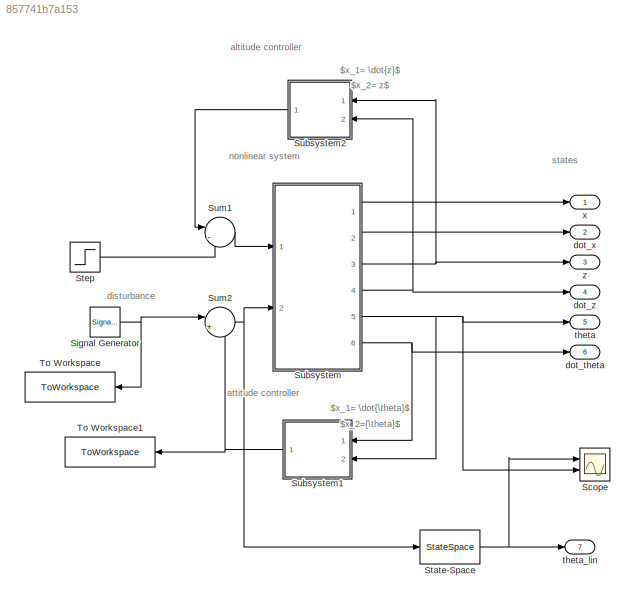
MODEL slx_857741b7a153
KIND model
CONFIG AbsTol = auto
CONFIG EnableMultiTasking = off
CONFIG FixedStep = auto
CONFIG MaxStep = auto
CONFIG MinStep = auto
CONFIG RelTol = 1e-3
CONFIG SampleTimeConstraint = Unconstrained
CONFIG Solver = VariableStepAuto
CONFIG SolverName = VariableStepAuto
CONFIG StartTime = 0.0
CONFIG StopTime = 1
BLOCK [Scope] Scope
  Floating = off
  NumInputPorts = 2
  Ports = [2]
  ScopeSpecificationString = Simulink.scopes.TimeScopeBlockCfg('CurrentConfiguration', extmgr.ConfigurationSet(extmgr.Configuration('Core','General UI',true),extmgr.Configuration('Core','Source UI',true),extmgr.Configuration('Sources','WiredSimulink',true),extmgr.Configuration('Visuals','Time Domain',true,'SerializedDisplays',{struct('MinYLimReal','-0.000000002','MaxYLimReal','0.000000017','YLabelReal','','MinYLimMag','0.0000...<+1400ch>
BLOCK [SignalGenerator] Signal Generator
  Amplitude = 1e-6
  Ports = [0, 1]
  Units = rad/sec
  WaveForm = square
BLOCK [StateSpace] State-Space
  A = sys.A
  B = sys.B
  C = sys.C
  D = sys.D
  InitialCondition = 0
  Ports = [1, 1]
BLOCK [Step] Step
  After = 7e6
  Before = 0.05*7e6
  SampleTime = 0
  Time = t_on
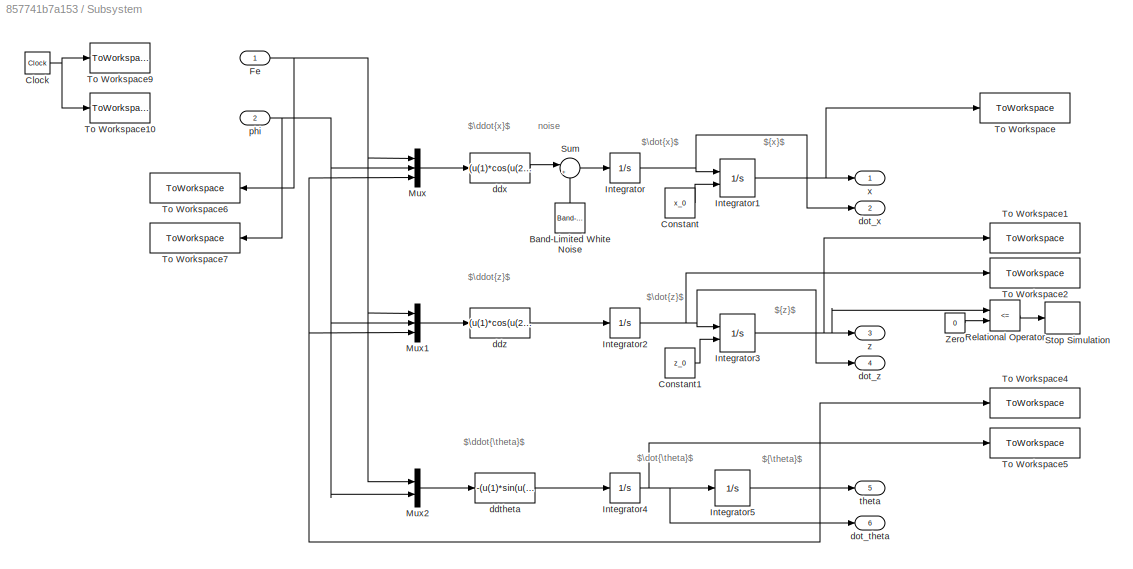
BLOCK [SubSystem] Subsystem
  Ports = [2, 6]
  RequestExecContextInheritance = off
BLOCK [Reference] Subsystem/Band-Limited White Noise  REF=simulink/Sources/Band-Limited
White Noise
  Ports = [0, 1]
  SourceBlock = simulink/Sources/Band-Limited\nWhite Noise
  SourceProductBaseCode = SL
  SourceProductName = Simulink
  SourceType = Band-Limited White Noise.
BLOCK [Clock] Subsystem/Clock
BLOCK [Constant] Subsystem/Constant
  SampleTime = Ts
  Value = x_0
BLOCK [Constant] Subsystem/Constant1
  SampleTime = Ts
  Value = z_0
BLOCK [Inport] Subsystem/Fe
  IconDisplay = Port number
BLOCK [Integrator] Subsystem/Integrator
  ContinuousStateAttributes = 'x_dot'
  Ports = [1, 1]
BLOCK [Integrator] Subsystem/Integrator1
  ContinuousStateAttributes = 'x'
  InitialConditionSource = external
  Ports = [2, 1]
BLOCK [Integrator] Subsystem/Integrator2
  ContinuousStateAttributes = 'z_dot'
  Ports = [1, 1]
BLOCK [Integrator] Subsystem/Integrator3
  ContinuousStateAttributes = 'z'
  InitialCondition = 50
  InitialConditionSource = external
  LimitOutput = on
  LowerSaturationLimit = 0
  Ports = [2, 1]
BLOCK [Integrator] Subsystem/Integrator4
  ContinuousStateAttributes = 'theta_dot'
  Ports = [1, 1]
BLOCK [Integrator] Subsystem/Integrator5
  Ports = [1, 1]
BLOCK [Mux] Subsystem/Mux
  DisplayOption = bar
  Inputs = 3
  Ports = [3, 1]
BLOCK [Mux] Subsystem/Mux1
  DisplayOption = bar
  Inputs = 3
  Ports = [3, 1]
BLOCK [Mux] Subsystem/Mux2
  DisplayOption = bar
  Inputs = 2
  Ports = [2, 1]
BLOCK [RelationalOperator] Subsystem/Relational Operator
  Commented = on
  InputSameDT = off
  Operator = <=
  OutDataTypeStr = boolean
  Ports = [2, 1]
BLOCK [Stop] Subsystem/Stop Simulation
  Commented = on
BLOCK [Sum] Subsystem/Sum
  IconShape = round
  InputSameDT = off
  Inputs = |++
  OutDataTypeStr = Inherit: Inherit via internal rule
  Ports = [2, 1]
  SaturateOnIntegerOverflow = off
BLOCK [ToWorkspace] Subsystem/To Workspace
  FixptAsFi = on
  MaxDataPoints = inf
  Ports = [1]
  SampleTime = Ts
  VariableName = x
BLOCK [ToWorkspace] Subsystem/To Workspace1
  FixptAsFi = on
  MaxDataPoints = inf
  Ports = [1]
  SampleTime = Ts
  VariableName = z
BLOCK [ToWorkspace] Subsystem/To Workspace10
  FixptAsFi = on
  MaxDataPoints = inf
  Ports = [1]
  SampleTime = Ts
  VariableName = ts
BLOCK [ToWorkspace] Subsystem/To Workspace2
  FixptAsFi = on
  MaxDataPoints = inf
  Ports = [1]
  SampleTime = Ts
  VariableName = dot_z
BLOCK [ToWorkspace] Subsystem/To Workspace4
  FixptAsFi = on
  MaxDataPoints = inf
  Ports = [1]
  SampleTime = Ts
  VariableName = theta
BLOCK [ToWorkspace] Subsystem/To Workspace5
  FixptAsFi = on
  MaxDataPoints = inf
  Ports = [1]
  SampleTime = Ts
  VariableName = dot_theta
BLOCK [ToWorkspace] Subsystem/To Workspace6
  FixptAsFi = on
  MaxDataPoints = inf
  Ports = [1]
  SampleTime = Ts
  VariableName = thrust
BLOCK [ToWorkspace] Subsystem/To Workspace7
  FixptAsFi = on
  MaxDataPoints = inf
  Ports = [1]
  SampleTime = Ts
  VariableName = gimbal
BLOCK [ToWorkspace] Subsystem/To Workspace9
  FixptAsFi = on
  MaxDataPoints = inf
  Ports = [1]
  SampleTime = -1
  VariableName = t
BLOCK [Constant] Subsystem/Zero
  Commented = on
  OutDataTypeStr = Inherit: Inherit via back propagation
  Value = 0
BLOCK [Fcn] Subsystem/ddtheta
  Expr = -(u(1)*sin(u(2))*(60+1*cos(u(2))))/J_T
BLOCK [Fcn] Subsystem/ddx
  Expr = (u(1)*cos(u(2))*sin(u(3))+u(1)*cos(u(3))*sin(u(2)))/m
BLOCK [Fcn] Subsystem/ddz
  Expr = (u(1)*cos(u(2))*cos(u(3))-u(1)*sin(u(2))*sin(u(3))-m*g)/m
BLOCK [Outport] Subsystem/dot_theta 
  IconDisplay = Port number
  Port = 6
BLOCK [Outport] Subsystem/dot_x
  IconDisplay = Port number
  Port = 2
BLOCK [Outport] Subsystem/dot_z 
  IconDisplay = Port number
  Port = 4
BLOCK [Inport] Subsystem/phi
  IconDisplay = Port number
  Port = 2
BLOCK [Outport] Subsystem/theta
  IconDisplay = Port number
  Port = 5
BLOCK [Outport] Subsystem/x
  IconDisplay = Port number
BLOCK [Outport] Subsystem/z
  IconDisplay = Port number
  Port = 3
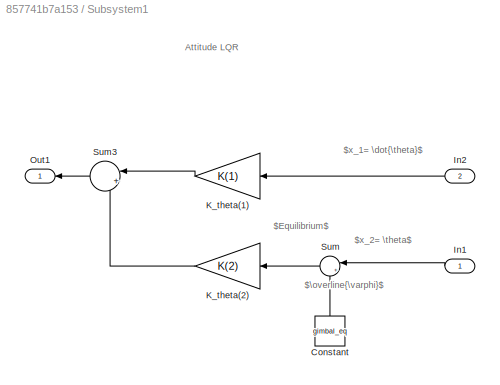
BLOCK [SubSystem] Subsystem1
  Ports = [2, 1]
  RequestExecContextInheritance = off
BLOCK [Constant] Subsystem1/Constant
  Value = gimbal_eq
BLOCK [Inport] Subsystem1/In1
  IconDisplay = Port number
BLOCK [Inport] Subsystem1/In2
  IconDisplay = Port number
  Port = 2
BLOCK [Gain] Subsystem1/K_theta(1)
  Gain = K(1)
  Multiplication = Matrix(K*u)
  OutDataTypeStr = Inherit: Inherit via internal rule
  ParamDataTypeStr = Inherit: Inherit via internal rule
  SaturateOnIntegerOverflow = off
BLOCK [Gain] Subsystem1/K_theta(2)
  Gain = K(2)
  Multiplication = Matrix(K*u)
  OutDataTypeStr = Inherit: Inherit via internal rule
  ParamDataTypeStr = Inherit: Inherit via internal rule
  SaturateOnIntegerOverflow = off
BLOCK [Outport] Subsystem1/Out1
  IconDisplay = Port number
BLOCK [Sum] Subsystem1/Sum
  IconShape = round
  InputSameDT = off
  Inputs = |+-
  OutDataTypeStr = Inherit: Inherit via internal rule
  Ports = [2, 1]
  SaturateOnIntegerOverflow = off
BLOCK [Sum] Subsystem1/Sum3
  IconShape = round
  InputSameDT = off
  Inputs = |++
  OutDataTypeStr = Inherit: Inherit via internal rule
  Ports = [2, 1]
  SaturateOnIntegerOverflow = off
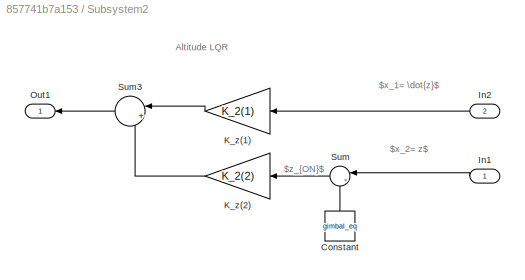
BLOCK [SubSystem] Subsystem2
  Ports = [2, 1]
  RequestExecContextInheritance = off
BLOCK [Constant] Subsystem2/Constant
  Value = gimbal_eq
BLOCK [Inport] Subsystem2/In1
  IconDisplay = Port number
BLOCK [Inport] Subsystem2/In2
  IconDisplay = Port number
  Port = 2
BLOCK [Gain] Subsystem2/K_z(1)
  Gain = K_2(1)
  Multiplication = Matrix(K*u)
  OutDataTypeStr = Inherit: Inherit via internal rule
  ParamDataTypeStr = Inherit: Inherit via internal rule
  SaturateOnIntegerOverflow = off
BLOCK [Gain] Subsystem2/K_z(2)
  Gain = K_2(2)
  Multiplication = Matrix(K*u)
  OutDataTypeStr = Inherit: Inherit via internal rule
  ParamDataTypeStr = Inherit: Inherit via internal rule
  SaturateOnIntegerOverflow = off
BLOCK [Outport] Subsystem2/Out1
  IconDisplay = Port number
BLOCK [Sum] Subsystem2/Sum
  IconShape = round
  InputSameDT = off
  Inputs = |+-
  OutDataTypeStr = Inherit: Inherit via internal rule
  Ports = [2, 1]
  SaturateOnIntegerOverflow = off
BLOCK [Sum] Subsystem2/Sum3
  IconShape = round
  InputSameDT = off
  Inputs = |++
  OutDataTypeStr = Inherit: Inherit via internal rule
  Ports = [2, 1]
  SaturateOnIntegerOverflow = off
BLOCK [Sum] Sum1
  IconShape = round
  InputSameDT = off
  Inputs = |-+
  OutDataTypeStr = Inherit: Inherit via internal rule
  Ports = [2, 1]
  SaturateOnIntegerOverflow = off
BLOCK [Sum] Sum2
  IconShape = round
  InputSameDT = off
  Inputs = |+-
  OutDataTypeStr = Inherit: Inherit via internal rule
  Ports = [2, 1]
  SaturateOnIntegerOverflow = off
BLOCK [ToWorkspace] To Workspace
  FixptAsFi = on
  MaxDataPoints = inf
  Ports = [1]
  SampleTime = Ts
  VariableName = disturb
BLOCK [ToWorkspace] To Workspace1
  FixptAsFi = on
  MaxDataPoints = inf
  Ports = [1]
  SampleTime = Ts
  VariableName = Phi_control
BLOCK [Outport] dot_theta 
  IconDisplay = Port number
  Port = 6
BLOCK [Outport] dot_x 
  IconDisplay = Port number
  Port = 2
BLOCK [Outport] dot_z
  IconDisplay = Port number
  Port = 4
BLOCK [Outport] theta
  IconDisplay = Port number
  Port = 5
BLOCK [Outport] theta_lin
  IconDisplay = Port number
  Port = 7
BLOCK [Outport] x
  IconDisplay = Port number
BLOCK [Outport] z
  IconDisplay = Port number
  Port = 3
ANNOTATION (root): disturbance
ANNOTATION (root): altitude controller
ANNOTATION (root): attitude controller
ANNOTATION (root): nonlinear system
ANNOTATION (root): states
ANNOTATION (root): $x_1= \dot{\theta}$
ANNOTATION (root): $x_1= \dot{z}$
ANNOTATION (root): $x_2= z$
ANNOTATION (root): $x_2={\theta}$
ANNOTATION Subsystem: noise
ANNOTATION Subsystem: $\ddot{\theta}$
ANNOTATION Subsystem: $\ddot{x}$
ANNOTATION Subsystem: $\ddot{z}$
ANNOTATION Subsystem: $\dot{\theta}$
ANNOTATION Subsystem: $\dot{x}$
ANNOTATION Subsystem: $\dot{z}$
ANNOTATION Subsystem: ${\theta}$
ANNOTATION Subsystem: ${x}$
ANNOTATION Subsystem: ${z}$
ANNOTATION Subsystem1: Attitude LQR
ANNOTATION Subsystem1: $\overline{\varphi}$
ANNOTATION Subsystem1: $x_1= \dot{\theta}$
ANNOTATION Subsystem1: $Equilibrium$
ANNOTATION Subsystem1: $x_2= \theta$
ANNOTATION Subsystem2: Altitude LQR
ANNOTATION Subsystem2: $z_{ON}$
ANNOTATION Subsystem2: $x_1= \dot{z}$
ANNOTATION Subsystem2: $x_2= z$
NET Signal Generator:1 -> Sum2:1, To Workspace:1
NET State-Space:1 -> Scope:1, theta_lin:1
LINE Step:1 -> Sum1:2
LINE Subsystem/Band-Limited White Noise:1 -> Subsystem/Sum:2
NET Subsystem/Clock:1 -> Subsystem/To Workspace10:1, Subsystem/To Workspace9:1
LINE Subsystem/Constant1:1 -> Subsystem/Integrator3:2
LINE Subsystem/Constant:1 -> Subsystem/Integrator1:2
NET Subsystem/Fe:1 -> Subsystem/Mux1:1, Subsystem/Mux2:1, Subsystem/Mux:1, Subsystem/To Workspace6:1
NET Subsystem/Integrator1:1 -> Subsystem/To Workspace:1, Subsystem/x:1
NET Subsystem/Integrator2:1 -> Subsystem/Integrator3:1, Subsystem/To Workspace2:1, Subsystem/dot_z :1
NET Subsystem/Integrator3:1 -> Subsystem/Relational Operator:1, Subsystem/To Workspace1:1, Subsystem/z:1
NET Subsystem/Integrator4:1 -> Subsystem/Integrator5:1, Subsystem/To Workspace5:1, Subsystem/dot_theta :1
NET Subsystem/Integrator5:1 -> Subsystem/Mux1:3, Subsystem/Mux:3, Subsystem/To Workspace4:1, Subsystem/theta:1
NET Subsystem/Integrator:1 -> Subsystem/Integrator1:1, Subsystem/dot_x:1
LINE Subsystem/Mux1:1 -> Subsystem/ddz:1
LINE Subsystem/Mux2:1 -> Subsystem/ddtheta:1
LINE Subsystem/Mux:1 -> Subsystem/ddx:1
LINE Subsystem/Relational Operator:1 -> Subsystem/Stop Simulation:1
LINE Subsystem/Sum:1 -> Subsystem/Integrator:1
LINE Subsystem/Zero:1 -> Subsystem/Relational Operator:2
LINE Subsystem/ddtheta:1 -> Subsystem/Integrator4:1
LINE Subsystem/ddx:1 -> Subsystem/Sum:1
LINE Subsystem/ddz:1 -> Subsystem/Integrator2:1
NET Subsystem/phi:1 -> Subsystem/Mux1:2, Subsystem/Mux2:2, Subsystem/Mux:2, Subsystem/To Workspace7:1
LINE Subsystem1/Constant:1 -> Subsystem1/Sum:2
LINE Subsystem1/In1:1 -> Subsystem1/Sum:1
LINE Subsystem1/In2:1 -> Subsystem1/K_theta(1):1
LINE Subsystem1/K_theta(1):1 -> Subsystem1/Sum3:1
LINE Subsystem1/K_theta(2):1 -> Subsystem1/Sum3:2
LINE Subsystem1/Sum3:1 -> Subsystem1/Out1:1
LINE Subsystem1/Sum:1 -> Subsystem1/K_theta(2):1
NET Subsystem1:1 -> Sum2:2, To Workspace1:1
LINE Subsystem2/Constant:1 -> Subsystem2/Sum:2
LINE Subsystem2/In1:1 -> Subsystem2/Sum:1
LINE Subsystem2/In2:1 -> Subsystem2/K_z(1):1
LINE Subsystem2/K_z(1):1 -> Subsystem2/Sum3:1
LINE Subsystem2/K_z(2):1 -> Subsystem2/Sum3:2
LINE Subsystem2/Sum3:1 -> Subsystem2/Out1:1
LINE Subsystem2/Sum:1 -> Subsystem2/K_z(2):1
LINE Subsystem2:1 -> Sum1:1
LINE Subsystem:1 -> x:1
LINE Subsystem:2 -> dot_x :1
NET Subsystem:3 -> Subsystem2:1, z:1
NET Subsystem:4 -> Subsystem2:2, dot_z:1
NET Subsystem:5 -> Scope:2, Subsystem1:2, theta:1
NET Subsystem:6 -> Subsystem1:1, dot_theta :1
LINE Sum1:1 -> Subsystem:1
NET Sum2:1 -> State-Space:1, Subsystem:2
note: NET lines group one-source signal fan-out (src -> all destinations, sorted); 1:1 wires keep LINE
